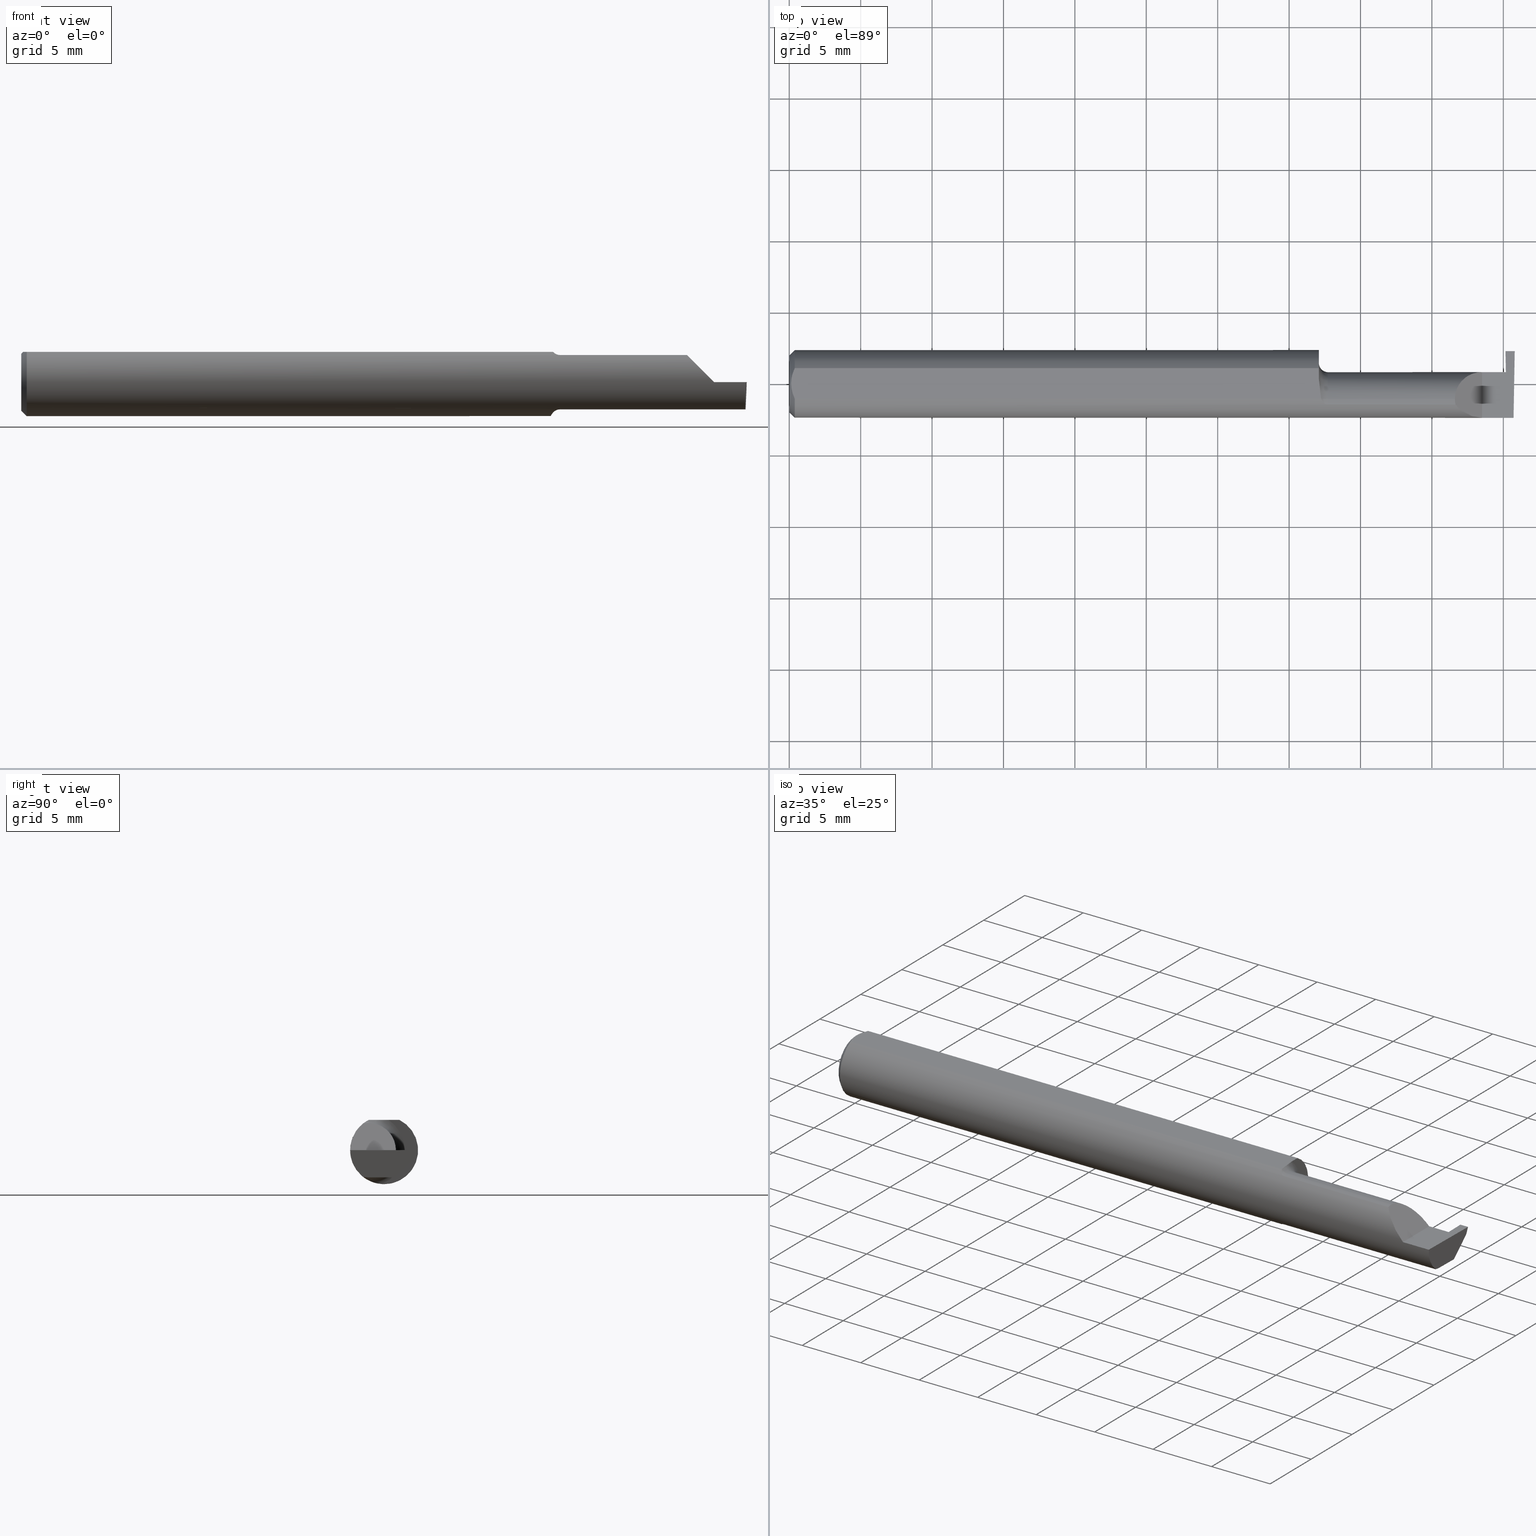
[diagram: canonical four-view strip — front | top / right | iso, engineering-drawing reading convention]
A machine part, canonical four-view strip (front | top / right | iso — engineering-drawing reading convention). The complete STEP part file that produces these views, byte-faithful:
ISO-10303-21;
HEADER;
FILE_DESCRIPTION (( 'STEP AP203' ),
    '1' );
FILE_NAME ('220662-GT025K-8.STEP',
    '2024-07-08T22:55:00',
    ( '' ),
    ( '' ),
    'SwSTEP 2.0',
    'SolidWorks 2024',
    '' );
FILE_SCHEMA (( 'CONFIG_CONTROL_DESIGN' ));
ENDSEC;

DATA;
#1 = DIRECTION ( 'NONE',  ( 0.04124162102275091835, 0.0006089328293546881869, -0.9991490168619618917 ) ) ;
#2 = ADVANCED_FACE ( 'NONE', ( #608 ), #625, .F. ) ;
#3 = CARTESIAN_POINT ( 'NONE',  ( 1.866066017177982594, 0.03239999999999998437, 0.04393398282201787380 ) ) ;
#4 = EDGE_CURVE ( 'NONE', #412, #445, #687, .T. ) ;
#5 = PRODUCT ( '220662-GT025K-8', '220662-GT025K-8', '', ( #654 ) ) ;
#6 = VECTOR ( 'NONE', #718, 39.37007874015748143 ) ;
#7 = ADVANCED_FACE ( 'NONE', ( #614 ), #308, .F. ) ;
#8 = DIRECTION ( 'NONE',  ( -0.03699114979479412729, 0.7066228325057373194, 0.7066228325057346549 ) ) ;
#9 = AXIS2_PLACEMENT_3D ( 'NONE', #634, #774, #584 ) ;
#10 = CARTESIAN_POINT ( 'NONE',  ( 1.459999999999999742, 0.01227294415283364248, 0.08359999999999999376 ) ) ;
#11 = ORIENTED_EDGE ( 'NONE', *, *, #529, .T. ) ;
#12 = EDGE_CURVE ( 'NONE', #264, #393, #15, .T. ) ;
#13 = CARTESIAN_POINT ( 'NONE',  ( 1.476446782524424073, -0.05558685324519236498, -0.07531605361338915283 ) ) ;
#14 = ORIENTED_EDGE ( 'NONE', *, *, #560, .T. ) ;
#15 = LINE ( 'NONE', #75, #341 ) ;
#16 = CARTESIAN_POINT ( 'NONE',  ( 1.994172072281005237, -0.09355431490906530867, -0.09996576130738771271 ) ) ;
#17 = VERTEX_POINT ( 'NONE', #257 ) ;
#18 = CARTESIAN_POINT ( 'NONE',  ( 1.880893035518783396, -0.09359999999999998876, 0.02910696448121669402 ) ) ;
#19 = CARTESIAN_POINT ( 'NONE',  ( 1.978214534726833840, -0.007134900077140363985, -0.07499999999999999722 ) ) ;
#20 = AXIS2_PLACEMENT_3D ( 'NONE', #329, #694, #91 ) ;
#21 = EDGE_LOOP ( 'NONE', ( #198, #372, #755, #223 ) ) ;
#22 = LINE ( 'NONE', #763, #33 ) ;
#23 = CARTESIAN_POINT ( 'NONE',  ( 1.978216550241089333, 0.05600033826564643213, -0.07500000000000002498 ) ) ;
#24 = EDGE_LOOP ( 'NONE', ( #190, #59, #719 ) ) ;
#25 = ADVANCED_FACE ( 'NONE', ( #200 ), #439, .T. ) ;
#26 = CARTESIAN_POINT ( 'NONE',  ( 1.996788249052547259, -0.09359999022555408332, -4.277588313355801215E-05 ) ) ;
#27 = DIRECTION ( 'NONE',  ( 0.000000000000000000, 0.000000000000000000, -1.000000000000000000 ) ) ;
#28 = ORIENTED_EDGE ( 'NONE', *, *, #427, .T. ) ;
#29 = LINE ( 'NONE', #508, #540 ) ;
#30 = CARTESIAN_POINT ( 'NONE',  ( 0.004999999999999986226, 1.025183015402604432E-17, 0.08359999999999999376 ) ) ;
#31 = EDGE_CURVE ( 'NONE', #498, #393, #320, .T. ) ;
#32 = ORIENTED_EDGE ( 'NONE', *, *, #666, .T. ) ;
#33 = VECTOR ( 'NONE', #571, 39.37007874015748143 ) ;
#34 = APPROVAL_PERSON_ORGANIZATION ( #727, #472, #776 ) ;
#35 = DIRECTION ( 'NONE',  ( -1.000000000000000000, -0.000000000000000000, -0.000000000000000000 ) ) ;
#36 = CARTESIAN_POINT ( 'NONE',  ( 1.459999999999999742, 0.000000000000000000, 0.000000000000000000 ) ) ;
#37 = DIRECTION ( 'NONE',  ( -1.000000000000000000, -0.000000000000000000, -0.000000000000000000 ) ) ;
#38 = DIRECTION ( 'NONE',  ( 0.000000000000000000, 0.000000000000000000, 1.000000000000000000 ) ) ;
#39 = ORIENTED_EDGE ( 'NONE', *, *, #58, .T. ) ;
#40 = LENGTH_MEASURE_WITH_UNIT ( LENGTH_MEASURE( 0.02539999999999999897 ), #219 );
#41 = DIRECTION ( 'NONE',  ( -1.000000000000000000, -0.000000000000000000, -0.000000000000000000 ) ) ;
#42 = EDGE_CURVE ( 'NONE', #131, #586, #420, .T. ) ;
#43 = VECTOR ( 'NONE', #633, 39.37007874015748143 ) ;
#44 = FACE_OUTER_BOUND ( 'NONE', #356, .T. ) ;
#45 = SECURITY_CLASSIFICATION ( '', '', #292 ) ;
#46 = CARTESIAN_POINT ( 'NONE',  ( 1.466129652885479251, -0.04209513035970094408, 0.08359999999999999376 ) ) ;
#47 = CALENDAR_DATE ( 2024, 8, 7 ) ;
#48 = DIRECTION ( 'NONE',  ( 0.000000000000000000, 0.000000000000000000, 1.000000000000000000 ) ) ;
#49 = EDGE_LOOP ( 'NONE', ( #403, #678, #11, #39, #145, #701, #641, #569, #92, #541, #409, #363, #353, #490, #369 ) ) ;
#50 = CARTESIAN_POINT ( 'NONE',  ( 1.978213402547462918, -0.04260000000000001286, -0.07499999999999998335 ) ) ;
#51 = VERTEX_POINT ( 'NONE', #735 ) ;
#52 = DIRECTION ( 'NONE',  ( 1.000000000000000000, 0.000000000000000000, 0.000000000000000000 ) ) ;
#53 = ORIENTED_EDGE ( 'NONE', *, *, #166, .T. ) ;
#54 = PERSON_AND_ORGANIZATION_ROLE ( 'design_supplier' ) ;
#55 = VECTOR ( 'NONE', #463, 39.37007874015748143 ) ;
#56 = ORGANIZATION ( 'UNSPECIFIED', 'UNSPECIFIED', '' ) ;
#57 = LINE ( 'NONE', #651, #215 ) ;
#58 = EDGE_CURVE ( 'NONE', #77, #149, #388, .T. ) ;
#59 = ORIENTED_EDGE ( 'NONE', *, *, #446, .T. ) ;
#60 = LINE ( 'NONE', #183, #6 ) ;
#61 = ORIENTED_EDGE ( 'NONE', *, *, #593, .T. ) ;
#62 = APPROVAL_DATE_TIME ( #366, #749 ) ;
#63 = FACE_OUTER_BOUND ( 'NONE', #294, .T. ) ;
#64 = VERTEX_POINT ( 'NONE', #205 ) ;
#65 = APPROVAL_ROLE ( '' ) ;
#66 = ADVANCED_FACE ( 'NONE', ( #63 ), #129, .F. ) ;
#67 = CARTESIAN_POINT ( 'NONE',  ( 1.975510542377208578, 0.03240000000000000518, 1.857359675493197298E-17 ) ) ;
#68 = CARTESIAN_POINT ( 'NONE',  ( 1.464570820222979908, -0.02392027542784326555, 0.08360000000000000764 ) ) ;
#69 = ORIENTED_EDGE ( 'NONE', *, *, #12, .T. ) ;
#70 = VECTOR ( 'NONE', #740, 39.37007874015748143 ) ;
#71 = DIRECTION ( 'NONE',  ( 0.000000000000000000, 0.000000000000000000, 1.000000000000000000 ) ) ;
#72 = AXIS2_PLACEMENT_3D ( 'NONE', #474, #52, #535 ) ;
#73 = ORIENTED_EDGE ( 'NONE', *, *, #196, .T. ) ;
#74 = CARTESIAN_POINT ( 'NONE',  ( 1.474728336617688651, -0.05428341532129050961, -0.07627162539867091140 ) ) ;
#75 = CARTESIAN_POINT ( 'NONE',  ( 1.978215639910378298, 0.03244570701694828724, -0.07499697642507778539 ) ) ;
#76 = CARTESIAN_POINT ( 'NONE',  ( 1.482653034764491728, -0.05810704225352129881, -0.07337936794867812307 ) ) ;
#77 = VERTEX_POINT ( 'NONE', #742 ) ;
#78 = CARTESIAN_POINT ( 'NONE',  ( 1.459999999999999964, -0.04259999999999998510, 0.07499999999999998335 ) ) ;
#79 = CARTESIAN_POINT ( 'NONE',  ( 0.000000000000000000, 0.000000000000000000, 0.000000000000000000 ) ) ;
#80 = VECTOR ( 'NONE', #565, 39.37007874015748854 ) ;
#81 = ADVANCED_FACE ( 'NONE', ( #488 ), #499, .T. ) ;
#82 = AXIS2_PLACEMENT_3D ( 'NONE', #775, #414, #105 ) ;
#83 = VERTEX_POINT ( 'NONE', #67 ) ;
#84 = FACE_OUTER_BOUND ( 'NONE', #726, .T. ) ;
#85 = CARTESIAN_POINT ( 'NONE',  ( 1.459999999999999742, -0.006757276995305157297, -0.09335576686851604356 ) ) ;
#86 = EDGE_CURVE ( 'NONE', #149, #131, #254, .T. ) ;
#87 = EDGE_CURVE ( 'NONE', #465, #319, #502, .T. ) ;
#88 = DIRECTION ( 'NONE',  ( -1.000000000000000000, -0.000000000000000000, -0.000000000000000000 ) ) ;
#89 = EDGE_CURVE ( 'NONE', #185, #227, #642, .T. ) ;
#90 = DIRECTION ( 'NONE',  ( 0.01742050049977392906, -0.9998482515673753346, -2.130797594924498551E-18 ) ) ;
#91 = DIRECTION ( 'NONE',  ( 0.000000000000000000, 0.000000000000000000, 1.000000000000000000 ) ) ;
#92 = ORIENTED_EDGE ( 'NONE', *, *, #511, .F. ) ;
#93 = CARTESIAN_POINT ( 'NONE',  ( 1.484999999999999876, -0.04259999999999997816, 0.000000000000000000 ) ) ;
#94 = CARTESIAN_POINT ( 'NONE',  ( 1.484999999999999876, -0.05810704225352111146, -0.07337936794867824797 ) ) ;
#95 = CARTESIAN_POINT ( 'NONE',  ( 1.484999999999999876, -0.04259999999999997816, 0.000000000000000000 ) ) ;
#96 = ORIENTED_EDGE ( 'NONE', *, *, #367, .F. ) ;
#97 = VECTOR ( 'NONE', #1, 39.37007874015748143 ) ;
#98 = VECTOR ( 'NONE', #394, 39.37007874015748143 ) ;
#99 = CARTESIAN_POINT ( 'NONE',  ( 0.01499999999999999944, 0.000000000000000000, 0.000000000000000000 ) ) ;
#100 = ORIENTED_EDGE ( 'NONE', *, *, #234, .T. ) ;
#101 = CARTESIAN_POINT ( 'NONE',  ( 1.974499999999999922, 0.09040000000000000813, -3.918869757271545852E-19 ) ) ;
#102 = LINE ( 'NONE', #347, #323 ) ;
#103 = ORIENTED_EDGE ( 'NONE', *, *, #175, .T. ) ;
#104 = DIRECTION ( 'NONE',  ( -1.000000000000000000, -0.000000000000000000, -0.000000000000000000 ) ) ;
#105 = DIRECTION ( 'NONE',  ( 0.000000000000000000, 0.000000000000000000, -1.000000000000000000 ) ) ;
#106 = EDGE_LOOP ( 'NONE', ( #303, #103, #168, #28 ) ) ;
#107 = CONICAL_SURFACE ( 'NONE', #617, 0.09359999999999998876, 0.7853981633974473908 ) ;
#108 = APPROVAL_DATE_TIME ( #122, #472 ) ;
#109 = APPLICATION_CONTEXT ( 'configuration controlled 3d designs of mechanical parts and assemblies' ) ;
#110 = CC_DESIGN_APPROVAL ( #663, ( #454 ) ) ;
#111 = CARTESIAN_POINT ( 'NONE',  ( 1.996789369178486373, -0.09359999999634724399, 1.965990811775635199E-19 ) ) ;
#112 = ADVANCED_FACE ( 'NONE', ( #343 ), #437, .T. ) ;
#113 = ORIENTED_EDGE ( 'NONE', *, *, #310, .T. ) ;
#114 = EDGE_CURVE ( 'NONE', #359, #471, #332, .T. ) ;
#115 = APPROVAL_STATUS ( 'not_yet_approved' ) ;
#116 = CARTESIAN_POINT ( 'NONE',  ( 1.484999999999999876, -0.04259999999999998510, 0.000000000000000000 ) ) ;
#117 = VERTEX_POINT ( 'NONE', #567 ) ;
#118 = PERSON_AND_ORGANIZATION_ROLE ( 'design_owner' ) ;
#119 = CARTESIAN_POINT ( 'NONE',  ( 0.01203648650249644972, 0.03550565407121128447, 0.08359999999999997988 ) ) ;
#120 = CARTESIAN_POINT ( 'NONE',  ( 0.004999999999999977553, -0.007328888879231072045, 0.08359999999999997988 ) ) ;
#121 = EDGE_LOOP ( 'NONE', ( #547, #377, #14, #778 ) ) ;
#122 = DATE_AND_TIME ( #783, #478 ) ;
#123 = VECTOR ( 'NONE', #155, 39.37007874015748143 ) ;
#124 = CIRCLE ( 'NONE', #745, 0.07499999999999998335 ) ;
#125 =( BOUNDED_CURVE ( )  B_SPLINE_CURVE ( 3, ( #346, #276, #707, #165 ),
 .UNSPECIFIED., .F., .T. ) 
 B_SPLINE_CURVE_WITH_KNOTS ( ( 4, 4 ),
 ( 4.455205321888865200, 4.711308219781928486 ),
 .UNSPECIFIED. ) 
 CURVE ( )  GEOMETRIC_REPRESENTATION_ITEM ( )  RATIONAL_B_SPLINE_CURVE ( ( 1.000000000000000000, 0.9945417399294781413, 0.9945417399294781413, 1.000000000000000000 ) ) 
 REPRESENTATION_ITEM ( '' )  );
#126 = DATE_AND_TIME ( #47, #162 ) ;
#127 = PRODUCT_DEFINITION_SHAPE ( 'NONE', 'NONE',  #501 ) ;
#128 = ADVANCED_FACE ( 'NONE', ( #84 ), #447, .F. ) ;
#129 = PLANE ( 'NONE',  #480 ) ;
#130 = CARTESIAN_POINT ( 'NONE',  ( 1.975284083932824064, 0.02994487577554267102, -0.01903262984222200624 ) ) ;
#131 = VERTEX_POINT ( 'NONE', #688 ) ;
#132 = DIRECTION ( 'NONE',  ( -1.000000000000000000, -0.000000000000000000, -0.000000000000000000 ) ) ;
#133 = ORIENTED_EDGE ( 'NONE', *, *, #728, .F. ) ;
#134 =( GEOMETRIC_REPRESENTATION_CONTEXT ( 3 ) GLOBAL_UNCERTAINTY_ASSIGNED_CONTEXT ( ( #255 ) ) GLOBAL_UNIT_ASSIGNED_CONTEXT ( ( #331, #570, #462 ) ) REPRESENTATION_CONTEXT ( 'NONE', 'WORKASPACE' ) );
#135 = CARTESIAN_POINT ( 'NONE',  ( 1.995715029210241243, -0.04259999999999997816, -0.07499999999999998335 ) ) ;
#136 = CARTESIAN_POINT ( 'NONE',  ( 1.468086474849918499, -0.04638796853538176834, -0.08140770120152256151 ) ) ;
#137 = ORIENTED_EDGE ( 'NONE', *, *, #492, .T. ) ;
#138 = CC_DESIGN_PERSON_AND_ORGANIZATION_ASSIGNMENT ( #426, #724, ( #501 ) ) ;
#139 = DIRECTION ( 'NONE',  ( 0.000000000000000000, 0.000000000000000000, -1.000000000000000000 ) ) ;
#140 = DIRECTION ( 'NONE',  ( -0.03084274406794415904, -0.7067703747110382073, -0.7067703747110356538 ) ) ;
#141 = ORIENTED_EDGE ( 'NONE', *, *, #150, .T. ) ;
#142 = ADVANCED_FACE ( 'NONE', ( #515 ), #146, .T. ) ;
#143 = DIRECTION ( 'NONE',  ( 0.9992391710281357531, 0.01740988840156643819, 0.03489949668475363781 ) ) ;
#144 = CARTESIAN_POINT ( 'NONE',  ( 1.466129652885479251, -0.04209513035970094408, 0.08359999999999999376 ) ) ;
#145 = ORIENTED_EDGE ( 'NONE', *, *, #427, .F. ) ;
#146 = PLANE ( 'NONE',  #411 ) ;
#147 = DIRECTION ( 'NONE',  ( -0.000000000000000000, 1.000000000000000000, -0.000000000000000000 ) ) ;
#148 = CIRCLE ( 'NONE', #187, 0.07860000000000001708 ) ;
#149 = VERTEX_POINT ( 'NONE', #265 ) ;
#150 = EDGE_CURVE ( 'NONE', #445, #247, #468, .T. ) ;
#151 = APPLICATION_CONTEXT ( 'configuration controlled 3d designs of mechanical parts and assemblies' ) ;
#152 = FACE_OUTER_BOUND ( 'NONE', #121, .T. ) ;
#153 = CARTESIAN_POINT ( 'NONE',  ( 2.999519565323743132E-32, -0.09359999999999998876, 2.449293598294717754E-16 ) ) ;
#154 = EDGE_LOOP ( 'NONE', ( #558, #73, #630, #327, #709, #517, #664 ) ) ;
#155 = DIRECTION ( 'NONE',  ( 1.000000000000000000, 0.000000000000000000, 0.000000000000000000 ) ) ;
#156 = CARTESIAN_POINT ( 'NONE',  ( 0.01499999999999999944, 0.000000000000000000, -0.09359999999999998876 ) ) ;
#157 = ORIENTED_EDGE ( 'NONE', *, *, #537, .F. ) ;
#158 = CARTESIAN_POINT ( 'NONE',  ( 1.459999999999999964, -0.04259999999999997816, -0.07499999999999998335 ) ) ;
#159 = DIRECTION ( 'NONE',  ( 1.000000000000000000, 0.000000000000000000, 0.000000000000000000 ) ) ;
#160 = EDGE_LOOP ( 'NONE', ( #173, #178, #157, #685, #457, #259, #725 ) ) ;
#161 = VECTOR ( 'NONE', #159, 39.37007874015748143 ) ;
#162 = LOCAL_TIME ( 15, 55, 0.000000000000000000, #301 ) ;
#163 = CARTESIAN_POINT ( 'NONE',  ( 1.466129652885479251, -0.04209513035970094408, 0.08359999999999999376 ) ) ;
#164 = ORIENTED_EDGE ( 'NONE', *, *, #698, .F. ) ;
#165 = CARTESIAN_POINT ( 'NONE',  ( 1.974499999999999922, 0.03239999167003507208, -3.534818988851040720E-05 ) ) ;
#166 = EDGE_CURVE ( 'NONE', #723, #359, #148, .T. ) ;
#167 = CARTESIAN_POINT ( 'NONE',  ( 1.463953896433696000, -0.03733827064844358334, -0.08603332211978831356 ) ) ;
#168 = ORIENTED_EDGE ( 'NONE', *, *, #593, .F. ) ;
#169 = APPROVAL_STATUS ( 'not_yet_approved' ) ;
#170 = ADVANCED_FACE ( 'NONE', ( #152 ), #328, .F. ) ;
#171 = CARTESIAN_POINT ( 'NONE',  ( 0.009492654797564227878, 0.02859466010166631170, 0.08360000000000000764 ) ) ;
#172 = AXIS2_PLACEMENT_3D ( 'NONE', #99, #459, #208 ) ;
#173 = ORIENTED_EDGE ( 'NONE', *, *, #446, .F. ) ;
#174 = AXIS2_PLACEMENT_3D ( 'NONE', #280, #638, #521 ) ;
#175 = EDGE_CURVE ( 'NONE', #131, #649, #628, .T. ) ;
#176 = CALENDAR_DATE ( 2024, 8, 7 ) ;
#177 = CARTESIAN_POINT ( 'NONE',  ( 1.484999999999999876, -0.05810704225352113922, 0.07337936794867823409 ) ) ;
#178 = ORIENTED_EDGE ( 'NONE', *, *, #673, .T. ) ;
#179 = LINE ( 'NONE', #604, #97 ) ;
#180 = ORIENTED_EDGE ( 'NONE', *, *, #594, .T. ) ;
#181 = APPROVAL_STATUS ( 'not_yet_approved' ) ;
#182 = CARTESIAN_POINT ( 'NONE',  ( 1.729749999999999677, -0.05810704225352113922, -0.07337936794867823409 ) ) ;
#183 = CARTESIAN_POINT ( 'NONE',  ( 0.01499999999999999944, 1.146269404001922621E-17, 0.09359999999999998876 ) ) ;
#184 = DIRECTION ( 'NONE',  ( 1.000000000000000000, 0.000000000000000000, 0.000000000000000000 ) ) ;
#185 = VERTEX_POINT ( 'NONE', #455 ) ;
#186 = CALENDAR_DATE ( 2024, 8, 7 ) ;
#187 = AXIS2_PLACEMENT_3D ( 'NONE', #212, #338, #575 ) ;
#188 = DIRECTION ( 'NONE',  ( -1.000000000000000000, -0.000000000000000000, -0.000000000000000000 ) ) ;
#189 = PLANE ( 'NONE',  #563 ) ;
#190 = ORIENTED_EDGE ( 'NONE', *, *, #392, .T. ) ;
#191 = CARTESIAN_POINT ( 'NONE',  ( 0.01499999999999999598, 0.04209513035969836975, 0.08359999999999999376 ) ) ;
#192 = DESIGN_CONTEXT ( 'detailed design', #151, 'design' ) ;
#193 = VERTEX_POINT ( 'NONE', #26 ) ;
#194 = CARTESIAN_POINT ( 'NONE',  ( 1.835542168554754605, -0.05300374992736077429, 0.07445783144524567576 ) ) ;
#195 = LINE ( 'NONE', #494, #70 ) ;
#196 = EDGE_CURVE ( 'NONE', #613, #64, #759, .T. ) ;
#197 = B_SPLINE_CURVE_WITH_KNOTS ( 'NONE', 3,
 ( #486, #120, #298, #781, #712, #596 ),
 .UNSPECIFIED., .F., .F.,
 ( 4, 2, 4 ),
 ( 0.002614097267282503544, 0.003163218599391118963, 0.003712339931499734381 ),
 .UNSPECIFIED. ) ;
#198 = ORIENTED_EDGE ( 'NONE', *, *, #431, .T. ) ;
#199 = AXIS2_PLACEMENT_3D ( 'NONE', #285, #636, #696 ) ;
#200 = FACE_OUTER_BOUND ( 'NONE', #316, .T. ) ;
#201 = DIRECTION ( 'NONE',  ( 7.209054895695219933E-16, -0.9999998142845093474, -0.0006094513490878466317 ) ) ;
#202 = AXIS2_PLACEMENT_3D ( 'NONE', #317, #143, #375 ) ;
#203 = ORIENTED_EDGE ( 'NONE', *, *, #335, .F. ) ;
#204 = EDGE_CURVE ( 'NONE', #741, #83, #564, .T. ) ;
#205 = CARTESIAN_POINT ( 'NONE',  ( 2.000000000000000444, 0.09040000000000000813, 6.269377719834979509E-17 ) ) ;
#206 = DIRECTION ( 'NONE',  ( 1.000000000000000000, 0.000000000000000000, 0.000000000000000000 ) ) ;
#207 = B_SPLINE_CURVE_WITH_KNOTS ( 'NONE', 3,
 ( #482, #119, #171, #543, #302, #410 ),
 .UNSPECIFIED., .F., .F.,
 ( 4, 2, 4 ),
 ( 0.001518921481343302573, 0.002066509374312902950, 0.002614097267282503544 ),
 .UNSPECIFIED. ) ;
#208 = DIRECTION ( 'NONE',  ( 0.000000000000000000, 0.000000000000000000, -1.000000000000000000 ) ) ;
#209 = FACE_OUTER_BOUND ( 'NONE', #160, .T. ) ;
#210 = EDGE_CURVE ( 'NONE', #586, #465, #22, .T. ) ;
#211 = EDGE_CURVE ( 'NONE', #117, #445, #29, .T. ) ;
#212 = CARTESIAN_POINT ( 'NONE',  ( 0.000000000000000000, 0.000000000000000000, 0.000000000000000000 ) ) ;
#213 = DIRECTION ( 'NONE',  ( -0.03056411404777943305, -0.3418603543644915810, -0.9392536042231929283 ) ) ;
#214 = CIRCLE ( 'NONE', #714, 0.09359999999999998876 ) ;
#215 = VECTOR ( 'NONE', #451, 39.37007874015748854 ) ;
#216 = CARTESIAN_POINT ( 'NONE',  ( 1.899999999999999911, 0.08348456554894213844, -0.01900000000000000300 ) ) ;
#217 = CARTESIAN_POINT ( 'NONE',  ( 1.999381723781206155, 0.08348456554894213844, -0.01899999999999999953 ) ) ;
#218 = DIRECTION ( 'NONE',  ( -7.219510806010324627E-16, 0.9999998142845092364, 0.0006094513490878469570 ) ) ;
#219 =( LENGTH_UNIT ( ) NAMED_UNIT ( * ) SI_UNIT ( $, .METRE. ) );
#220 = DIMENSIONAL_EXPONENTS ( 1.000000000000000000, 0.000000000000000000, 0.000000000000000000, 0.000000000000000000, 0.000000000000000000, 0.000000000000000000, 0.000000000000000000 ) ;
#221 = DIRECTION ( 'NONE',  ( 1.000000000000000000, -0.000000000000000000, -0.000000000000000000 ) ) ;
#222 = LINE ( 'NONE', #767, #161 ) ;
#223 = ORIENTED_EDGE ( 'NONE', *, *, #686, .T. ) ;
#224 = CC_DESIGN_PERSON_AND_ORGANIZATION_ASSIGNMENT ( #307, #662, ( #45 ) ) ;
#225 = CARTESIAN_POINT ( 'NONE',  ( 0.000000000000000000, 0.000000000000000000, 0.000000000000000000 ) ) ;
#226 = FACE_OUTER_BOUND ( 'NONE', #106, .T. ) ;
#227 = VERTEX_POINT ( 'NONE', #217 ) ;
#228 = AXIS2_PLACEMENT_3D ( 'NONE', #278, #519, #344 ) ;
#229 = ADVANCED_BREP_SHAPE_REPRESENTATION ( '220662-GT025K-8', ( #245, #731 ), #134 ) ;
#230 = EDGE_CURVE ( 'NONE', #51, #551, #396, .T. ) ;
#231 = DIRECTION ( 'NONE',  ( -1.000000000000000000, -7.209802597311143795E-16, 1.224646799147358877E-16 ) ) ;
#232 = CARTESIAN_POINT ( 'NONE',  ( 1.474746577633804234, -0.05429945193459817521, 0.07626038032150797563 ) ) ;
#233 = VERTEX_POINT ( 'NONE', #94 ) ;
#234 = EDGE_CURVE ( 'NONE', #433, #51, #197, .T. ) ;
#235 = CARTESIAN_POINT ( 'NONE',  ( 1.466356684838558522, -0.04259999999999997816, 0.08334386600104415344 ) ) ;
#236 = ORIENTED_EDGE ( 'NONE', *, *, #283, .T. ) ;
#237 = PERSON_AND_ORGANIZATION ( #348, #56 ) ;
#238 = CARTESIAN_POINT ( 'NONE',  ( 1.466204482410374155, -0.04226411763296330365, 0.08351490979309549034 ) ) ;
#239 = AXIS2_PLACEMENT_3D ( 'NONE', #315, #132, #435 ) ;
#240 = AXIS2_PLACEMENT_3D ( 'NONE', #650, #88, #336 ) ;
#241 = CARTESIAN_POINT ( 'NONE',  ( 1.466280153739604630, -0.04243240890922537339, 0.08342952773968856373 ) ) ;
#242 = EDGE_LOOP ( 'NONE', ( #752, #53 ) ) ;
#243 = COORDINATED_UNIVERSAL_TIME_OFFSET ( 8, 0, .BEHIND. ) ;
#244 = LINE ( 'NONE', #23, #80 ) ;
#245 = MANIFOLD_SOLID_BREP ( 'Front Angle', #576 ) ;
#246 = DIRECTION ( 'NONE',  ( 1.000000000000000000, 0.000000000000000000, 0.000000000000000000 ) ) ;
#247 = VERTEX_POINT ( 'NONE', #50 ) ;
#248 = AXIS2_PLACEMENT_3D ( 'NONE', #739, #35, #390 ) ;
#249 = CARTESIAN_POINT ( 'NONE',  ( 1.836620632051322310, -0.05810704225352133351, 0.07337936794867813695 ) ) ;
#250 = DIRECTION ( 'NONE',  ( 0.000000000000000000, 0.0006094513490878465233, -0.9999998142845092364 ) ) ;
#251 = ORIENTED_EDGE ( 'NONE', *, *, #728, .T. ) ;
#252 = CARTESIAN_POINT ( 'NONE',  ( 1.975181069320713245, 0.08545240048792476784, -0.01703216506101738748 ) ) ;
#253 = CARTESIAN_POINT ( 'NONE',  ( 1.484999999999999876, -0.04259999999999997816, 0.000000000000000000 ) ) ;
#254 =( BOUNDED_CURVE ( )  B_SPLINE_CURVE ( 3, ( #249, #194, #512, #766 ),
 .UNSPECIFIED., .F., .F. ) 
 B_SPLINE_CURVE_WITH_KNOTS ( ( 4, 4 ),
 ( 6.074922494366326475, 6.283185307179586232 ),
 .UNSPECIFIED. ) 
 CURVE ( )  GEOMETRIC_REPRESENTATION_ITEM ( )  RATIONAL_B_SPLINE_CURVE ( ( 1.000000000000000000, 0.9963888149483994816, 0.9963888149483994816, 1.000000000000000000 ) ) 
 REPRESENTATION_ITEM ( '' )  );
#255 = UNCERTAINTY_MEASURE_WITH_UNIT (LENGTH_MEASURE( 1.000000000000000082E-05 ), #331, 'distance_accuracy_value', 'NONE');
#256 = ORIENTED_EDGE ( 'NONE', *, *, #533, .T. ) ;
#257 = CARTESIAN_POINT ( 'NONE',  ( 1.484999999999999876, -0.04259999999999997122, -0.07499999999999998335 ) ) ;
#258 = DIRECTION ( 'NONE',  ( 0.02617296143184117893, -0.0004568507411563393905, 0.9996573249755575929 ) ) ;
#259 = ORIENTED_EDGE ( 'NONE', *, *, #592, .T. ) ;
#260 = CIRCLE ( 'NONE', #362, 0.09359999999999998876 ) ;
#261 = VECTOR ( 'NONE', #231, 39.37007874015748143 ) ;
#262 = ORIENTED_EDGE ( 'NONE', *, *, #87, .F. ) ;
#263 = CARTESIAN_POINT ( 'NONE',  ( 1.995486889784650053, -0.05810704225352113922, -0.07337936794867823409 ) ) ;
#264 = VERTEX_POINT ( 'NONE', #415 ) ;
#265 = CARTESIAN_POINT ( 'NONE',  ( 1.836620632051322310, -0.05810704225352133351, 0.07337936794867813695 ) ) ;
#266 = FACE_OUTER_BOUND ( 'NONE', #669, .T. ) ;
#267 = ORIENTED_EDGE ( 'NONE', *, *, #150, .F. ) ;
#268 = CARTESIAN_POINT ( 'NONE',  ( 1.997382703856816155, 0.09044568507411562819, -0.09996573249755577595 ) ) ;
#269 = LINE ( 'NONE', #754, #631 ) ;
#270 = PLANE ( 'NONE',  #715 ) ;
#271 = AXIS2_PLACEMENT_3D ( 'NONE', #513, #700, #339 ) ;
#272 = DIRECTION ( 'NONE',  ( 1.000000000000000000, 0.000000000000000000, -0.000000000000000000 ) ) ;
#273 = CARTESIAN_POINT ( 'NONE',  ( 1.466356684838558522, -0.04259999999999997816, 0.08334386600104415344 ) ) ;
#274 = VECTOR ( 'NONE', #658, 39.37007874015748143 ) ;
#275 = ORIENTED_EDGE ( 'NONE', *, *, #698, .T. ) ;
#276 = CARTESIAN_POINT ( 'NONE',  ( 1.975027797685394937, 0.03157410243558825269, -0.01282266061342999565 ) ) ;
#277 = DIRECTION ( 'NONE',  ( 0.000000000000000000, -0.000000000000000000, 1.000000000000000000 ) ) ;
#278 = CARTESIAN_POINT ( 'NONE',  ( 1.459999999999999742, -0.04259999999999998510, 0.000000000000000000 ) ) ;
#279 = APPLICATION_PROTOCOL_DEFINITION ( 'international standard', 'config_control_design', 1994, #109 ) ;
#280 = CARTESIAN_POINT ( 'NONE',  ( 1.910000000000000142, -0.1000000000000000056, 1.102182119232621301E-17 ) ) ;
#281 = LINE ( 'NONE', #153, #550 ) ;
#282 = VERTEX_POINT ( 'NONE', #536 ) ;
#283 = EDGE_CURVE ( 'NONE', #723, #433, #60, .T. ) ;
#284 = LINE ( 'NONE', #466, #261 ) ;
#285 = CARTESIAN_POINT ( 'NONE',  ( 1.484999999999999876, -0.04259999999999998510, 0.000000000000000000 ) ) ;
#286 = VECTOR ( 'NONE', #751, 39.37007874015748143 ) ;
#287 = EDGE_CURVE ( 'NONE', #319, #264, #179, .T. ) ;
#288 = CARTESIAN_POINT ( 'NONE',  ( 1.484999999999999876, -0.04259999999999998510, 0.000000000000000000 ) ) ;
#289 = EDGE_CURVE ( 'NONE', #247, #498, #244, .T. ) ;
#290 = LINE ( 'NONE', #595, #438 ) ;
#291 = ORIENTED_EDGE ( 'NONE', *, *, #702, .F. ) ;
#292 = SECURITY_CLASSIFICATION_LEVEL ( 'unclassified' ) ;
#293 = LINE ( 'NONE', #660, #274 ) ;
#294 = EDGE_LOOP ( 'NONE', ( #578, #137, #69, #682, #484 ) ) ;
#295 = VERTEX_POINT ( 'NONE', #191 ) ;
#296 = DATE_TIME_ROLE ( 'creation_date' ) ;
#297 = CARTESIAN_POINT ( 'NONE',  ( 1.460436655799339123, -0.01945041057485635827, -0.09177104786119411051 ) ) ;
#298 = CARTESIAN_POINT ( 'NONE',  ( 0.005975039161239314132, -0.01453776427033151748, 0.08360000000000000764 ) ) ;
#299 = VECTOR ( 'NONE', #705, 39.37007874015748143 ) ;
#300 = APPROVAL_PERSON_ORGANIZATION ( #606, #749, #65 ) ;
#301 = COORDINATED_UNIVERSAL_TIME_OFFSET ( 8, 0, .BEHIND. ) ;
#302 = CARTESIAN_POINT ( 'NONE',  ( 0.004999999999999975818, 0.007308422719211830898, 0.08359999999999999376 ) ) ;
#303 = ORIENTED_EDGE ( 'NONE', *, *, #86, .T. ) ;
#304 = CARTESIAN_POINT ( 'NONE',  ( 1.459999999999999964, -0.04259999999999998510, 0.000000000000000000 ) ) ;
#305 = ADVANCED_FACE ( 'NONE', ( #266 ), #432, .F. ) ;
#306 = ORIENTED_EDGE ( 'NONE', *, *, #537, .T. ) ;
#307 = PERSON_AND_ORGANIZATION ( #348, #56 ) ;
#308 = PLANE ( 'NONE',  #202 ) ;
#309 = CARTESIAN_POINT ( 'NONE',  ( 1.466356684838558522, -0.04259999999999997122, -0.08334386600104412568 ) ) ;
#310 = EDGE_CURVE ( 'NONE', #365, #282, #195, .T. ) ;
#311 = ORIENTED_EDGE ( 'NONE', *, *, #114, .F. ) ;
#312 = ADVANCED_FACE ( 'NONE', ( #668 ), #107, .T. ) ;
#313 = AXIS2_PLACEMENT_3D ( 'NONE', #79, #326, #572 ) ;
#314 = CC_DESIGN_APPROVAL ( #472, ( #45 ) ) ;
#315 = CARTESIAN_POINT ( 'NONE',  ( 0.000000000000000000, 0.000000000000000000, 0.000000000000000000 ) ) ;
#316 = EDGE_LOOP ( 'NONE', ( #203, #275, #772, #605, #599, #398, #737, #133 ) ) ;
#317 = CARTESIAN_POINT ( 'NONE',  ( 1.979734127201016936, 0.09049136203013631585, -0.1499086240528643699 ) ) ;
#318 = LINE ( 'NONE', #16, #337 ) ;
#319 = VERTEX_POINT ( 'NONE', #500 ) ;
#320 = LINE ( 'NONE', #252, #643 ) ;
#321 = CARTESIAN_POINT ( 'NONE',  ( 1.977956086143509484, 0.03244268712522559162, -0.07004187842361092597 ) ) ;
#322 = VERTEX_POINT ( 'NONE', #309 ) ;
#323 = VECTOR ( 'NONE', #147, 39.37007874015748143 ) ;
#324 = ADVANCED_FACE ( 'NONE', ( #559 ), #189, .F. ) ;
#325 = DIRECTION ( 'NONE',  ( 0.01744642479411314534, 0.9998477995484629233, -2.135106780035503491E-18 ) ) ;
#326 = DIRECTION ( 'NONE',  ( -1.000000000000000000, -0.000000000000000000, -0.000000000000000000 ) ) ;
#327 = ORIENTED_EDGE ( 'NONE', *, *, #204, .T. ) ;
#328 = PLANE ( 'NONE',  #174 ) ;
#329 = CARTESIAN_POINT ( 'NONE',  ( 1.484999999999999876, -0.04259999999999997122, -0.09999999999999999167 ) ) ;
#330 = ORIENTED_EDGE ( 'NONE', *, *, #351, .F. ) ;
#331 =( CONVERSION_BASED_UNIT ( 'INCH', #40 ) LENGTH_UNIT ( ) NAMED_UNIT ( #220 ) );
#332 = LINE ( 'NONE', #632, #299 ) ;
#333 = DIRECTION ( 'NONE',  ( -1.000000000000000000, -0.000000000000000000, -0.000000000000000000 ) ) ;
#334 = ORIENTED_EDGE ( 'NONE', *, *, #310, .F. ) ;
#335 = EDGE_CURVE ( 'NONE', #247, #748, #528, .T. ) ;
#336 = DIRECTION ( 'NONE',  ( 0.000000000000000000, 0.000000000000000000, 1.000000000000000000 ) ) ;
#337 = VECTOR ( 'NONE', #258, 39.37007874015748854 ) ;
#338 = DIRECTION ( 'NONE',  ( -1.000000000000000000, -0.000000000000000000, -0.000000000000000000 ) ) ;
#339 = DIRECTION ( 'NONE',  ( 0.000000000000000000, -0.3420201433256696566, -0.9396926207859079838 ) ) ;
#340 = ORIENTED_EDGE ( 'NONE', *, *, #533, .F. ) ;
#341 = VECTOR ( 'NONE', #493, 39.37007874015748854 ) ;
#342 = DIRECTION ( 'NONE',  ( 0.000000000000000000, -0.7071067811865462405, 0.7071067811865487940 ) ) ;
#343 = FACE_OUTER_BOUND ( 'NONE', #380, .T. ) ;
#344 = DIRECTION ( 'NONE',  ( 0.000000000000000000, 0.000000000000000000, 1.000000000000000000 ) ) ;
#345 = ORIENTED_EDGE ( 'NONE', *, *, #674, .T. ) ;
#346 = CARTESIAN_POINT ( 'NONE',  ( 1.975284083932824064, 0.02994487577554267102, -0.01903262984222200624 ) ) ;
#347 = CARTESIAN_POINT ( 'NONE',  ( 1.910000000000000142, -0.1000000000000000056, 1.102182119232621301E-17 ) ) ;
#348 = PERSON ( 'UNSPECIFIED', 'UNSPECIFIED', 'UNSPECIFIED', ('UNSPECIFIED'), ('UNSPECIFIED'), ('UNSPECIFIED') ) ;
#349 = DIRECTION ( 'NONE',  ( 0.000000000000000000, 0.000000000000000000, 1.000000000000000000 ) ) ;
#350 = PLANE ( 'NONE',  #72 ) ;
#351 = EDGE_CURVE ( 'NONE', #227, #117, #612, .T. ) ;
#352 = AXIS2_PLACEMENT_3D ( 'NONE', #288, #104, #349 ) ;
#353 = ORIENTED_EDGE ( 'NONE', *, *, #673, .F. ) ;
#354 = SHAPE_DEFINITION_REPRESENTATION ( #127, #229 ) ;
#355 = CARTESIAN_POINT ( 'NONE',  ( 1.470259025420519228, -0.04992838138009422083, 0.07925011723318650669 ) ) ;
#356 = EDGE_LOOP ( 'NONE', ( #251, #510, #423 ) ) ;
#357 = PERSON_AND_ORGANIZATION ( #348, #56 ) ;
#358 = CARTESIAN_POINT ( 'NONE',  ( 1.466356684838558522, -0.04259999999999997122, -0.08334386600104412568 ) ) ;
#359 = VERTEX_POINT ( 'NONE', #379 ) ;
#360 = CC_DESIGN_DATE_AND_TIME_ASSIGNMENT ( #418, #296, ( #501 ) ) ;
#361 = CARTESIAN_POINT ( 'NONE',  ( 1.468098441794898346, -0.04641417426599063478, 0.08139430652501544738 ) ) ;
#362 = AXIS2_PLACEMENT_3D ( 'NONE', #644, #405, #582 ) ;
#363 = ORIENTED_EDGE ( 'NONE', *, *, #534, .F. ) ;
#364 = EDGE_CURVE ( 'NONE', #551, #365, #562, .T. ) ;
#365 = VERTEX_POINT ( 'NONE', #10 ) ;
#366 = DATE_AND_TIME ( #186, #620 ) ;
#367 = EDGE_CURVE ( 'NONE', #359, #723, #677, .T. ) ;
#368 = DIRECTION ( 'NONE',  ( 0.000000000000000000, 0.000000000000000000, 1.000000000000000000 ) ) ;
#369 = ORIENTED_EDGE ( 'NONE', *, *, #674, .F. ) ;
#370 = ORIENTED_EDGE ( 'NONE', *, *, #534, .T. ) ;
#371 = CARTESIAN_POINT ( 'NONE',  ( 1.980744671832483705, 0.03249136206948449734, -0.1499086886162006582 ) ) ;
#372 = ORIENTED_EDGE ( 'NONE', *, *, #587, .T. ) ;
#373 = TOROIDAL_SURFACE ( 'NONE', #691, 0.09999999999999999167, 0.02500000000000007425 ) ;
#374 = LOCAL_TIME ( 15, 55, 0.000000000000000000, #600 ) ;
#375 = DIRECTION ( 'NONE',  ( 0.03490478697967554222, 0.000000000000000000, -0.9993906422645267851 ) ) ;
#376 = CARTESIAN_POINT ( 'NONE',  ( 2.000000000000000000, -0.1000000000000000056, 0.000000000000000000 ) ) ;
#377 = ORIENTED_EDGE ( 'NONE', *, *, #58, .F. ) ;
#378 = CARTESIAN_POINT ( 'NONE',  ( 1.995624014772495514, -0.04781600192481526984, -0.07499999999999996947 ) ) ;
#379 = CARTESIAN_POINT ( 'NONE',  ( 0.000000000000000000, 0.000000000000000000, -0.07860000000000001708 ) ) ;
#380 = EDGE_LOOP ( 'NONE', ( #483, #236, #619, #555, #311 ) ) ;
#381 = CARTESIAN_POINT ( 'NONE',  ( 2.000000000000000000, -0.04259999999999999204, -0.07499999999999998335 ) ) ;
#382 = CARTESIAN_POINT ( 'NONE',  ( 1.977080687037212847, 0.02094495418688681332, -0.05333678008583640079 ) ) ;
#383 = ORIENTED_EDGE ( 'NONE', *, *, #196, .F. ) ;
#384 = CIRCLE ( 'NONE', #82, 0.02500000000000007425 ) ;
#385 = CARTESIAN_POINT ( 'NONE',  ( 1.910000000000000142, 0.03239999999999999131, 1.102182119232621301E-17 ) ) ;
#386 = ADVANCED_FACE ( 'NONE', ( #615 ), #373, .F. ) ;
#387 = EDGE_LOOP ( 'NONE', ( #627, #566, #141, #645 ) ) ;
#388 =( BOUNDED_CURVE ( )  B_SPLINE_CURVE ( 3, ( #611, #18, #622, #428 ),
 .UNSPECIFIED., .F., .T. ) 
 B_SPLINE_CURVE_WITH_KNOTS ( ( 4, 4 ),
 ( 4.712388980384689674, 5.613420356061716632 ),
 .UNSPECIFIED. ) 
 CURVE ( )  GEOMETRIC_REPRESENTATION_ITEM ( )  RATIONAL_B_SPLINE_CURVE ( ( 1.000000000000000000, 0.9334817841311877640, 0.9334817841311877640, 1.000000000000000000 ) ) 
 REPRESENTATION_ITEM ( '' )  );
#389 = CARTESIAN_POINT ( 'NONE',  ( 2.000000000000000000, 0.05599964285600403380, -0.07500000000000002498 ) ) ;
#390 = DIRECTION ( 'NONE',  ( 0.000000000000000000, 0.000000000000000000, 1.000000000000000000 ) ) ;
#391 = DIRECTION ( 'NONE',  ( 1.000000000000000000, 0.000000000000000000, 0.000000000000000000 ) ) ;
#392 = EDGE_CURVE ( 'NONE', #233, #322, #665, .T. ) ;
#393 = VERTEX_POINT ( 'NONE', #321 ) ;
#394 = DIRECTION ( 'NONE',  ( -1.000000000000000000, -0.000000000000000000, -0.000000000000000000 ) ) ;
#395 = EDGE_CURVE ( 'NONE', #193, #613, #318, .T. ) ;
#396 = LINE ( 'NONE', #695, #123 ) ;
#397 = PLANE ( 'NONE',  #271 ) ;
#398 = ORIENTED_EDGE ( 'NONE', *, *, #210, .T. ) ;
#399 = LINE ( 'NONE', #158, #98 ) ;
#400 = VECTOR ( 'NONE', #221, 39.37007874015748143 ) ;
#401 = FACE_OUTER_BOUND ( 'NONE', #21, .T. ) ;
#402 = AXIS2_PLACEMENT_3D ( 'NONE', #93, #762, #579 ) ;
#403 = ORIENTED_EDGE ( 'NONE', *, *, #653, .T. ) ;
#404 = DIRECTION ( 'NONE',  ( 0.000000000000000000, 0.000000000000000000, 1.000000000000000000 ) ) ;
#405 = DIRECTION ( 'NONE',  ( -1.000000000000000000, -0.000000000000000000, -0.000000000000000000 ) ) ;
#406 = VERTEX_POINT ( 'NONE', #743 ) ;
#407 = FACE_OUTER_BOUND ( 'NONE', #24, .T. ) ;
#408 = CARTESIAN_POINT ( 'NONE',  ( 1.459999999999999742, -0.006757276995305157297, -0.09335576686851604356 ) ) ;
#409 = ORIENTED_EDGE ( 'NONE', *, *, #453, .F. ) ;
#410 = CARTESIAN_POINT ( 'NONE',  ( 0.004999999999999986226, 1.025183015402604432E-17, 0.08359999999999999376 ) ) ;
#411 = AXIS2_PLACEMENT_3D ( 'NONE', #753, #277, #272 ) ;
#412 = VERTEX_POINT ( 'NONE', #263 ) ;
#413 = COORDINATED_UNIVERSAL_TIME_OFFSET ( 8, 0, .BEHIND. ) ;
#414 = DIRECTION ( 'NONE',  ( 0.000000000000000000, -1.000000000000000000, 0.000000000000000000 ) ) ;
#415 = CARTESIAN_POINT ( 'NONE',  ( 1.975284083932824064, 0.03241159854787072775, -0.01903112649442140550 ) ) ;
#416 = ORIENTED_EDGE ( 'NONE', *, *, #395, .F. ) ;
#417 = ADVANCED_FACE ( 'NONE', ( #505 ), #684, .T. ) ;
#418 = DATE_AND_TIME ( #176, #591 ) ;
#419 = DIRECTION ( 'NONE',  ( -1.000000000000000000, -0.000000000000000000, -0.000000000000000000 ) ) ;
#420 =( BOUNDED_CURVE ( )  B_SPLINE_CURVE ( 3, ( #556, #504, #3, #671 ),
 .UNSPECIFIED., .F., .F. ) 
 B_SPLINE_CURVE_WITH_KNOTS ( ( 4, 4 ),
 ( 0.000000000000000000, 1.570796326794896558 ),
 .UNSPECIFIED. ) 
 CURVE ( )  GEOMETRIC_REPRESENTATION_ITEM ( )  RATIONAL_B_SPLINE_CURVE ( ( 1.000000000000000000, 0.8047378541243649375, 0.8047378541243649375, 1.000000000000000000 ) ) 
 REPRESENTATION_ITEM ( '' )  );
#421 = COORDINATED_UNIVERSAL_TIME_OFFSET ( 8, 0, .BEHIND. ) ;
#422 = EDGE_CURVE ( 'NONE', #649, #17, #744, .T. ) ;
#423 = ORIENTED_EDGE ( 'NONE', *, *, #492, .F. ) ;
#424 = VECTOR ( 'NONE', #218, 39.37007874015748854 ) ;
#425 = ORIENTED_EDGE ( 'NONE', *, *, #594, .F. ) ;
#426 = PERSON_AND_ORGANIZATION ( #348, #56 ) ;
#427 = EDGE_CURVE ( 'NONE', #406, #149, #222, .T. ) ;
#428 = CARTESIAN_POINT ( 'NONE',  ( 1.836620632051322310, -0.05810704225352133351, 0.07337936794867813695 ) ) ;
#429 = CARTESIAN_POINT ( 'NONE',  ( 1.978213402547462918, -0.04260000000000001286, -0.07499999999999998335 ) ) ;
#430 = ORIENTED_EDGE ( 'NONE', *, *, #592, .F. ) ;
#431 = EDGE_CURVE ( 'NONE', #741, #64, #764, .T. ) ;
#432 = PLANE ( 'NONE',  #768 ) ;
#433 = VERTEX_POINT ( 'NONE', #30 ) ;
#434 = VERTEX_POINT ( 'NONE', #273 ) ;
#435 = DIRECTION ( 'NONE',  ( 0.000000000000000000, 0.000000000000000000, 1.000000000000000000 ) ) ;
#436 = ORIENTED_EDGE ( 'NONE', *, *, #647, .F. ) ;
#437 = CONICAL_SURFACE ( 'NONE', #172, 0.09359999999999998876, 0.7853981633974473908 ) ;
#438 = VECTOR ( 'NONE', #531, 39.37007874015748143 ) ;
#439 = CYLINDRICAL_SURFACE ( 'NONE', #679, 0.07499999999999998335 ) ;
#440 = DIRECTION ( 'NONE',  ( -1.000000000000000000, 0.000000000000000000, 1.224646799147358877E-16 ) ) ;
#441 = VERTEX_POINT ( 'NONE', #85 ) ;
#442 = CC_DESIGN_DATE_AND_TIME_ASSIGNMENT ( #126, #597, ( #45 ) ) ;
#443 = CARTESIAN_POINT ( 'NONE',  ( 0.000000000000000000, 0.000000000000000000, 0.000000000000000000 ) ) ;
#444 = CARTESIAN_POINT ( 'NONE',  ( 1.459999999999999742, 0.003280657920457031966, 0.08359999999999999376 ) ) ;
#445 = VERTEX_POINT ( 'NONE', #522 ) ;
#446 = EDGE_CURVE ( 'NONE', #322, #17, #602, .T. ) ;
#447 = PLANE ( 'NONE',  #756 ) ;
#448 = CARTESIAN_POINT ( 'NONE',  ( 1.899999999999999911, 0.09040000000000000813, -3.918869757271545852E-19 ) ) ;
#449 = ORIENTED_EDGE ( 'NONE', *, *, #364, .T. ) ;
#450 = B_SPLINE_CURVE_WITH_KNOTS ( 'NONE', 3,
 ( #46, #238, #241, #235 ),
 .UNSPECIFIED., .F., .F.,
 ( 4, 4 ),
 ( 4.741820243502701581E-07, 1.584523690453573094E-05 ),
 .UNSPECIFIED. ) ;
#451 = DIRECTION ( 'NONE',  ( -0.03874971116600714471, 0.3417632683796886228, 0.9389868626722014389 ) ) ;
#452 = AXIS2_PLACEMENT_3D ( 'NONE', #95, #585, #38 ) ;
#453 = EDGE_CURVE ( 'NONE', #282, #295, #460, .T. ) ;
#454 = PRODUCT_DEFINITION_FORMATION_WITH_SPECIFIED_SOURCE ( 'ANY', '', #5, .NOT_KNOWN. ) ;
#455 = CARTESIAN_POINT ( 'NONE',  ( 1.975284083932824064, 0.08348456554894213844, -0.01899999999999999953 ) ) ;
#456 = CARTESIAN_POINT ( 'NONE',  ( 1.978215639910378298, 0.02748456554894101664, -0.07500000000000031641 ) ) ;
#457 = ORIENTED_EDGE ( 'NONE', *, *, #621, .T. ) ;
#458 = PLANE ( 'NONE',  #9 ) ;
#459 = DIRECTION ( 'NONE',  ( 1.000000000000000000, 0.000000000000000000, 0.000000000000000000 ) ) ;
#460 = LINE ( 'NONE', #516, #616 ) ;
#461 = ORIENTED_EDGE ( 'NONE', *, *, #686, .F. ) ;
#462 =( NAMED_UNIT ( * ) SI_UNIT ( $, .STERADIAN. ) SOLID_ANGLE_UNIT ( ) );
#463 = DIRECTION ( 'NONE',  ( -1.000000000000000000, -0.000000000000000000, -0.000000000000000000 ) ) ;
#464 = DIRECTION ( 'NONE',  ( -1.000000000000000000, -0.000000000000000000, -0.000000000000000000 ) ) ;
#465 = VERTEX_POINT ( 'NONE', #568 ) ;
#466 = CARTESIAN_POINT ( 'NONE',  ( 2.000000000000000000, 0.03240000000000002600, 1.169020725542458377E-32 ) ) ;
#467 = TOROIDAL_SURFACE ( 'NONE', #452, 0.09999999999999999167, 0.02500000000000007425 ) ;
#468 = LINE ( 'NONE', #381, #729 ) ;
#469 = CARTESIAN_POINT ( 'NONE',  ( 1.459999999999999964, -0.04259999999999998510, 0.000000000000000000 ) ) ;
#470 = CC_DESIGN_SECURITY_CLASSIFICATION ( #45, ( #454 ) ) ;
#471 = VERTEX_POINT ( 'NONE', #156 ) ;
#472 = APPROVAL ( #181, 'UNSPECIFIED' ) ;
#473 = CARTESIAN_POINT ( 'NONE',  ( 1.996788249052547259, -0.09359999022555408332, -4.277588313355801215E-05 ) ) ;
#474 = CARTESIAN_POINT ( 'NONE',  ( 1.459999999999999742, 0.1323999999999999622, 0.000000000000000000 ) ) ;
#475 =( BOUNDED_CURVE ( )  B_SPLINE_CURVE ( 3, ( #527, #771, #711, #473 ),
 .UNSPECIFIED., .F., .F. ) 
 B_SPLINE_CURVE_WITH_KNOTS ( ( 4, 4 ),
 ( 0.08204942185700607460, 0.9826237902196914842 ),
 .UNSPECIFIED. ) 
 CURVE ( )  GEOMETRIC_REPRESENTATION_ITEM ( )  RATIONAL_B_SPLINE_CURVE ( ( 1.000000000000000000, 0.9335481000009943076, 0.9335481000009943076, 1.000000000000000000 ) ) 
 REPRESENTATION_ITEM ( '' )  );
#476 = ORIENTED_EDGE ( 'NONE', *, *, #511, .T. ) ;
#477 = APPROVAL_ROLE ( '' ) ;
#478 = LOCAL_TIME ( 15, 55, 0.000000000000000000, #243 ) ;
#479 = EDGE_LOOP ( 'NONE', ( #164, #267, #683, #345, #652 ) ) ;
#480 = AXIS2_PLACEMENT_3D ( 'NONE', #553, #496, #545 ) ;
#481 = DATE_AND_TIME ( #544, #374 ) ;
#482 = CARTESIAN_POINT ( 'NONE',  ( 0.01499999999999999598, 0.04209513035969836975, 0.08359999999999999376 ) ) ;
#483 = ORIENTED_EDGE ( 'NONE', *, *, #166, .F. ) ;
#484 = ORIENTED_EDGE ( 'NONE', *, *, #289, .F. ) ;
#485 = APPLICATION_PROTOCOL_DEFINITION ( 'international standard', 'config_control_design', 1994, #151 ) ;
#486 = CARTESIAN_POINT ( 'NONE',  ( 0.004999999999999986226, 1.025183015402604432E-17, 0.08359999999999999376 ) ) ;
#487 = ORIENTED_EDGE ( 'NONE', *, *, #211, .F. ) ;
#488 = FACE_OUTER_BOUND ( 'NONE', #479, .T. ) ;
#489 = VECTOR ( 'NONE', #90, 39.37007874015748143 ) ;
#490 = ORIENTED_EDGE ( 'NONE', *, *, #392, .F. ) ;
#491 = CIRCLE ( 'NONE', #352, 0.07499999999999998335 ) ;
#492 = EDGE_CURVE ( 'NONE', #748, #264, #648, .T. ) ;
#493 = DIRECTION ( 'NONE',  ( 0.05230943362268535013, 0.0006086169641121966277, -0.9986307389317959915 ) ) ;
#494 = CARTESIAN_POINT ( 'NONE',  ( 1.459999999999999742, -0.09360000000000003040, 0.08359999999999999376 ) ) ;
#495 = ORIENTED_EDGE ( 'NONE', *, *, #287, .F. ) ;
#496 = DIRECTION ( 'NONE',  ( 0.9986309243930281410, -3.188005489064582067E-05, 0.05230942390801322089 ) ) ;
#497 = CARTESIAN_POINT ( 'NONE',  ( 1.470264545693809488, -0.04993027844100268037, -0.07924826417278514612 ) ) ;
#498 = VERTEX_POINT ( 'NONE', #456 ) ;
#499 = CYLINDRICAL_SURFACE ( 'NONE', #779, 0.07499999999999998335 ) ;
#500 = CARTESIAN_POINT ( 'NONE',  ( 1.974499999999999922, 0.03239999167003507208, -3.534818988851040720E-05 ) ) ;
#501 = PRODUCT_DEFINITION ( 'UNKNOWN', '', #454, #192 ) ;
#502 = CIRCLE ( 'NONE', #248, 0.07499999999999999722 ) ;
#503 = CC_DESIGN_APPROVAL ( #749, ( #501 ) ) ;
#504 = CARTESIAN_POINT ( 'NONE',  ( 1.835000000000000187, 0.001333982822017879596, 0.07499999999999998335 ) ) ;
#505 = FACE_OUTER_BOUND ( 'NONE', #49, .T. ) ;
#506 = ORIENTED_EDGE ( 'NONE', *, *, #653, .F. ) ;
#507 = ADVANCED_FACE ( 'NONE', ( #401 ), #397, .F. ) ;
#508 = CARTESIAN_POINT ( 'NONE',  ( 1.997436282896842163, 0.05604437736224970185, -0.07500000000000002498 ) ) ;
#509 = CARTESIAN_POINT ( 'NONE',  ( 0.01499999999999999944, 0.000000000000000000, 0.000000000000000000 ) ) ;
#510 = ORIENTED_EDGE ( 'NONE', *, *, #287, .T. ) ;
#511 = EDGE_CURVE ( 'NONE', #471, #51, #260, .T. ) ;
#512 = CARTESIAN_POINT ( 'NONE',  ( 1.835000000000000187, -0.04781600192481537392, 0.07499999999999998335 ) ) ;
#513 = CARTESIAN_POINT ( 'NONE',  ( 1.899999999999999911, 0.09040000000000000813, -3.918869757271545852E-19 ) ) ;
#514 = ADVANCED_FACE ( 'NONE', ( #209 ), #467, .F. ) ;
#515 = FACE_OUTER_BOUND ( 'NONE', #717, .T. ) ;
#516 = CARTESIAN_POINT ( 'NONE',  ( 0.000000000000000000, 0.04209513035969836975, 0.08359999999999999376 ) ) ;
#517 = ORIENTED_EDGE ( 'NONE', *, *, #210, .F. ) ;
#518 = CARTESIAN_POINT ( 'NONE',  ( 1.996678706298551376, -0.09994204647866641866, 4.067411700507134861E-19 ) ) ;
#519 = DIRECTION ( 'NONE',  ( -1.000000000000000000, -0.000000000000000000, -0.000000000000000000 ) ) ;
#520 = CARTESIAN_POINT ( 'NONE',  ( 1.975284083932824064, 0.02994487577554267102, -0.01903262984222200624 ) ) ;
#521 = DIRECTION ( 'NONE',  ( -0.7071067811865460184, 0.000000000000000000, 0.7071067811865490160 ) ) ;
#522 = CARTESIAN_POINT ( 'NONE',  ( 1.995715029210241243, -0.04259999999999997816, -0.07499999999999998335 ) ) ;
#523 = CC_DESIGN_PERSON_AND_ORGANIZATION_ASSIGNMENT ( #357, #610, ( #454 ) ) ;
#524 = B_SPLINE_CURVE_WITH_KNOTS ( 'NONE', 3,
 ( #358, #167, #598, #297, #539, #408 ),
 .UNSPECIFIED., .F., .F.,
 ( 4, 2, 4 ),
 ( 0.0007041963409106363411, 0.001193146413573859584, 0.001682096486237082827 ),
 .UNSPECIFIED. ) ;
#525 = CARTESIAN_POINT ( 'NONE',  ( 0.000000000000000000, 1.054420894065871180E-17, 0.07860000000000001708 ) ) ;
#526 = AXIS2_PLACEMENT_3D ( 'NONE', #469, #333, #706 ) ;
#527 = CARTESIAN_POINT ( 'NONE',  ( 1.995486889784650053, -0.05810704225352113922, -0.07337936794867823409 ) ) ;
#528 =( BOUNDED_CURVE ( )  B_SPLINE_CURVE ( 3, ( #429, #19, #382, #130 ),
 .UNSPECIFIED., .F., .F. ) 
 B_SPLINE_CURVE_WITH_KNOTS ( ( 4, 4 ),
 ( 3.140983202202990654, 4.455205321888861647 ),
 .UNSPECIFIED. ) 
 CURVE ( )  GEOMETRIC_REPRESENTATION_ITEM ( )  RATIONAL_B_SPLINE_CURVE ( ( 1.000000000000000000, 0.8611734602017913076, 0.8611734602017913076, 1.000000000000000000 ) ) 
 REPRESENTATION_ITEM ( '' )  );
#529 = EDGE_CURVE ( 'NONE', #613, #77, #281, .T. ) ;
#530 = DIRECTION ( 'NONE',  ( -0.000000000000000000, 3.463308682636258767E-16, 1.000000000000000000 ) ) ;
#531 = DIRECTION ( 'NONE',  ( -0.03699114979479522364, 0.7066228325057373194, 0.7066228325057347659 ) ) ;
#532 = ORIENTED_EDGE ( 'NONE', *, *, #114, .T. ) ;
#533 = EDGE_CURVE ( 'NONE', #393, #83, #639, .T. ) ;
#534 = EDGE_CURVE ( 'NONE', #441, #282, #214, .T. ) ;
#535 = DIRECTION ( 'NONE',  ( 0.000000000000000000, 0.000000000000000000, -1.000000000000000000 ) ) ;
#536 = CARTESIAN_POINT ( 'NONE',  ( 1.459999999999999742, 0.04209513035969834893, 0.08359999999999999376 ) ) ;
#537 = EDGE_CURVE ( 'NONE', #365, #441, #574, .T. ) ;
#538 = ORIENTED_EDGE ( 'NONE', *, *, #234, .F. ) ;
#539 = CARTESIAN_POINT ( 'NONE',  ( 1.459999999999999520, -0.01308640439514264717, -0.09289765197734373148 ) ) ;
#540 = VECTOR ( 'NONE', #750, 39.37007874015748143 ) ;
#541 = ORIENTED_EDGE ( 'NONE', *, *, #710, .F. ) ;
#542 = AXIS2_PLACEMENT_3D ( 'NONE', #443, #246, #139 ) ;
#543 = CARTESIAN_POINT ( 'NONE',  ( 0.005981829149300634495, 0.01454044632356570055, 0.08359999999999997988 ) ) ;
#544 = CALENDAR_DATE ( 2024, 8, 7 ) ;
#545 = DIRECTION ( 'NONE',  ( 0.05230942393459524914, 0.000000000000000000, -0.9986309249005013156 ) ) ;
#546 = ADVANCED_FACE ( 'NONE', ( #226 ), #689, .T. ) ;
#547 = ORIENTED_EDGE ( 'NONE', *, *, #86, .F. ) ;
#548 = ORIENTED_EDGE ( 'NONE', *, *, #204, .F. ) ;
#549 = CARTESIAN_POINT ( 'NONE',  ( 1.459999999999999742, 0.01227294415283364248, 0.08359999999999999376 ) ) ;
#550 = VECTOR ( 'NONE', #41, 39.37007874015748143 ) ;
#551 = VERTEX_POINT ( 'NONE', #163 ) ;
#552 = CIRCLE ( 'NONE', #240, 0.09359999999999998876 ) ;
#553 = CARTESIAN_POINT ( 'NONE',  ( 1.978215639910379631, -1.943743329312950241, -0.07620136772299576644 ) ) ;
#554 = CARTESIAN_POINT ( 'NONE',  ( 1.480389671955115949, -0.05750350940205799927, -0.07386306649500064270 ) ) ;
#555 = ORIENTED_EDGE ( 'NONE', *, *, #710, .T. ) ;
#556 = CARTESIAN_POINT ( 'NONE',  ( 1.835000000000000409, -0.04259999999999998510, 0.07499999999999998335 ) ) ;
#557 = DIRECTION ( 'NONE',  ( -1.000000000000000000, -0.000000000000000000, -0.000000000000000000 ) ) ;
#558 = ORIENTED_EDGE ( 'NONE', *, *, #529, .F. ) ;
#559 = FACE_OUTER_BOUND ( 'NONE', #154, .T. ) ;
#560 = EDGE_CURVE ( 'NONE', #77, #586, #102, .T. ) ;
#561 = ORIENTED_EDGE ( 'NONE', *, *, #31, .T. ) ;
#562 = B_SPLINE_CURVE_WITH_KNOTS ( 'NONE', 3,
 ( #144, #672, #68, #736, #444, #549 ),
 .UNSPECIFIED., .F., .F.,
 ( 4, 2, 4 ),
 ( 0.009672910729349781800, 0.01035804079918456987, 0.01104317086901935793 ),
 .UNSPECIFIED. ) ;
#563 = AXIS2_PLACEMENT_3D ( 'NONE', #376, #681, #440 ) ;
#564 = LINE ( 'NONE', #635, #489 ) ;
#565 = DIRECTION ( 'NONE',  ( 3.192376091677297614E-05, 0.9999999994904366085, -3.463312784668718708E-16 ) ) ;
#566 = ORIENTED_EDGE ( 'NONE', *, *, #211, .T. ) ;
#567 = CARTESIAN_POINT ( 'NONE',  ( 1.996937940439960535, 0.02748456554894196727, -0.07499999999999998335 ) ) ;
#568 = CARTESIAN_POINT ( 'NONE',  ( 1.974499999999999922, 0.03240000000000000518, 6.613080830317130235E-17 ) ) ;
#569 = ORIENTED_EDGE ( 'NONE', *, *, #230, .F. ) ;
#570 =( NAMED_UNIT ( * ) PLANE_ANGLE_UNIT ( ) SI_UNIT ( $, .RADIAN. ) );
#571 = DIRECTION ( 'NONE',  ( 1.000000000000000000, 0.000000000000000000, 0.000000000000000000 ) ) ;
#572 = DIRECTION ( 'NONE',  ( 0.000000000000000000, 0.000000000000000000, 1.000000000000000000 ) ) ;
#573 = ORIENTED_EDGE ( 'NONE', *, *, #283, .F. ) ;
#574 = CIRCLE ( 'NONE', #228, 0.09999999999999999167 ) ;
#575 = DIRECTION ( 'NONE',  ( 0.000000000000000000, 0.000000000000000000, 1.000000000000000000 ) ) ;
#576 = CLOSED_SHELL ( 'NONE', ( #25, #546, #733, #514, #112, #417, #142, #324, #170, #312, #2, #386, #618, #81, #738, #758, #507, #305, #7, #66, #773, #128 ) ) ;
#577 = CARTESIAN_POINT ( 'NONE',  ( 1.980744671832483705, 0.03249136206948449734, -0.1499086886162006582 ) ) ;
#578 = ORIENTED_EDGE ( 'NONE', *, *, #335, .T. ) ;
#579 = DIRECTION ( 'NONE',  ( 0.000000000000000000, 0.000000000000000000, 1.000000000000000000 ) ) ;
#580 = CC_DESIGN_PERSON_AND_ORGANIZATION_ASSIGNMENT ( #713, #118, ( #5 ) ) ;
#581 = DIRECTION ( 'NONE',  ( -0.9995051766793262571, 0.01744044634007060890, 0.02617694830739122902 ) ) ;
#582 = DIRECTION ( 'NONE',  ( 0.000000000000000000, 0.000000000000000000, 1.000000000000000000 ) ) ;
#583 = ORIENTED_EDGE ( 'NONE', *, *, #230, .T. ) ;
#584 = DIRECTION ( 'NONE',  ( 0.04124161337657036158, 0.000000000000000000, -0.9991492027350556970 ) ) ;
#585 = DIRECTION ( 'NONE',  ( -1.000000000000000000, -0.000000000000000000, -0.000000000000000000 ) ) ;
#586 = VERTEX_POINT ( 'NONE', #385 ) ;
#587 = EDGE_CURVE ( 'NONE', #64, #227, #269, .T. ) ;
#588 = DIRECTION ( 'NONE',  ( 0.000000000000000000, -0.7071067811865487940, -0.7071067811865462405 ) ) ;
#589 = VECTOR ( 'NONE', #325, 39.37007874015748143 ) ;
#590 = CARTESIAN_POINT ( 'NONE',  ( 1.484999999999999876, -0.04259999999999997816, 0.07499999999999998335 ) ) ;
#591 = LOCAL_TIME ( 15, 55, 0.000000000000000000, #413 ) ;
#592 = EDGE_CURVE ( 'NONE', #434, #649, #384, .T. ) ;
#593 = EDGE_CURVE ( 'NONE', #406, #649, #124, .T. ) ;
#594 = EDGE_CURVE ( 'NONE', #393, #185, #290, .T. ) ;
#595 = CARTESIAN_POINT ( 'NONE',  ( 1.975181069320712801, 0.08545240048792480947, -0.01703216506101733196 ) ) ;
#596 = CARTESIAN_POINT ( 'NONE',  ( 0.01499999999999999944, -0.04209513035969836975, 0.08359999999999999376 ) ) ;
#597 = DATE_TIME_ROLE ( 'classification_date' ) ;
#598 = CARTESIAN_POINT ( 'NONE',  ( 1.462415450430337716, -0.03151229630690470518, -0.08835846806355296401 ) ) ;
#599 = ORIENTED_EDGE ( 'NONE', *, *, #42, .T. ) ;
#600 = COORDINATED_UNIVERSAL_TIME_OFFSET ( 8, 0, .BEHIND. ) ;
#601 = CARTESIAN_POINT ( 'NONE',  ( 1.480389214148234434, -0.05750155061631040398, 0.07386444488392698848 ) ) ;
#602 = CIRCLE ( 'NONE', #20, 0.02500000000000007425 ) ;
#603 = VECTOR ( 'NONE', #419, 39.37007874015748143 ) ;
#604 = CARTESIAN_POINT ( 'NONE',  ( 1.975284083932824064, 0.03241159854787072775, -0.01903112649442139162 ) ) ;
#605 = ORIENTED_EDGE ( 'NONE', *, *, #175, .F. ) ;
#606 = PERSON_AND_ORGANIZATION ( #348, #56 ) ;
#607 = PRODUCT_RELATED_PRODUCT_CATEGORY ( 'detail', '', ( #5 ) ) ;
#608 = FACE_OUTER_BOUND ( 'NONE', #242, .T. ) ;
#609 = EDGE_LOOP ( 'NONE', ( #624, #765, #436, #561, #180 ) ) ;
#610 = PERSON_AND_ORGANIZATION_ROLE ( 'creator' ) ;
#611 = CARTESIAN_POINT ( 'NONE',  ( 1.910000000000000142, -0.09359999999999998876, 1.102182119232621301E-17 ) ) ;
#612 = LINE ( 'NONE', #623, #655 ) ;
#613 = VERTEX_POINT ( 'NONE', #111 ) ;
#614 = FACE_OUTER_BOUND ( 'NONE', #732, .T. ) ;
#615 = FACE_OUTER_BOUND ( 'NONE', #697, .T. ) ;
#616 = VECTOR ( 'NONE', #464, 39.37007874015748143 ) ;
#617 = AXIS2_PLACEMENT_3D ( 'NONE', #509, #206, #747 ) ;
#618 = ADVANCED_FACE ( 'NONE', ( #777 ), #350, .T. ) ;
#619 = ORIENTED_EDGE ( 'NONE', *, *, #666, .F. ) ;
#620 = LOCAL_TIME ( 15, 55, 0.000000000000000000, #421 ) ;
#621 = EDGE_CURVE ( 'NONE', #551, #434, #450, .T. ) ;
#622 = CARTESIAN_POINT ( 'NONE',  ( 1.854690286057537829, -0.08092595952420833516, 0.05530971394246224360 ) ) ;
#623 = CARTESIAN_POINT ( 'NONE',  ( 1.999287184445666554, 0.08131816941191073733, -0.02116639613703140757 ) ) ;
#624 = ORIENTED_EDGE ( 'NONE', *, *, #89, .T. ) ;
#625 = PLANE ( 'NONE',  #542 ) ;
#626 = DIRECTION ( 'NONE',  ( 0.000000000000000000, 0.000000000000000000, 1.000000000000000000 ) ) ;
#627 = ORIENTED_EDGE ( 'NONE', *, *, #647, .T. ) ;
#628 = LINE ( 'NONE', #78, #55 ) ;
#629 = CARTESIAN_POINT ( 'NONE',  ( 1.466356684838558522, -0.04259999999999997122, -0.08334386600104412568 ) ) ;
#630 = ORIENTED_EDGE ( 'NONE', *, *, #431, .F. ) ;
#631 = VECTOR ( 'NONE', #213, 39.37007874015748143 ) ;
#632 = CARTESIAN_POINT ( 'NONE',  ( 0.01499999999999999944, 0.000000000000000000, -0.09359999999999998876 ) ) ;
#633 = DIRECTION ( 'NONE',  ( 1.000000000000000000, -0.000000000000000000, -0.000000000000000000 ) ) ;
#634 = CARTESIAN_POINT ( 'NONE',  ( 1.975284083932825618, -1.943777437782027828, -0.02023551779233937961 ) ) ;
#635 = CARTESIAN_POINT ( 'NONE',  ( 1.977824098549211040, -0.1003863739339453109, 2.715764672991602673E-18 ) ) ;
#636 = DIRECTION ( 'NONE',  ( -1.000000000000000000, -0.000000000000000000, -0.000000000000000000 ) ) ;
#637 = ORIENTED_EDGE ( 'NONE', *, *, #587, .F. ) ;
#638 = DIRECTION ( 'NONE',  ( -0.7071067811865490160, 0.000000000000000000, -0.7071067811865460184 ) ) ;
#639 = LINE ( 'NONE', #577, #286 ) ;
#640 = B_SPLINE_CURVE_WITH_KNOTS ( 'NONE', 3,
 ( #656, #361, #355, #232, #716, #601, #708, #177 ),
 .UNSPECIFIED., .F., .F.,
 ( 4, 2, 2, 4 ),
 ( 1.584523690453573094E-05, 0.0003656721978374746925, 0.0005405856783039505531, 0.0007154991587704265764 ),
 .UNSPECIFIED. ) ;
#641 = ORIENTED_EDGE ( 'NONE', *, *, #621, .F. ) ;
#642 = LINE ( 'NONE', #699, #400 ) ;
#643 = VECTOR ( 'NONE', #8, 39.37007874015748854 ) ;
#644 = CARTESIAN_POINT ( 'NONE',  ( 0.01499999999999999944, 0.000000000000000000, 0.000000000000000000 ) ) ;
#645 = ORIENTED_EDGE ( 'NONE', *, *, #289, .T. ) ;
#646 = DIRECTION ( 'NONE',  ( 0.000000000000000000, -1.000000000000000000, 3.463308682636258767E-16 ) ) ;
#647 = EDGE_CURVE ( 'NONE', #498, #117, #293, .T. ) ;
#648 = LINE ( 'NONE', #760, #424 ) ;
#649 = VERTEX_POINT ( 'NONE', #590 ) ;
#650 = CARTESIAN_POINT ( 'NONE',  ( 0.01499999999999999944, 0.000000000000000000, 0.000000000000000000 ) ) ;
#651 = CARTESIAN_POINT ( 'NONE',  ( 1.974388135261399002, 0.09138662048129635174, 0.002710717493933112801 ) ) ;
#652 = ORIENTED_EDGE ( 'NONE', *, *, #734, .F. ) ;
#653 = EDGE_CURVE ( 'NONE', #412, #193, #475, .T. ) ;
#654 = MECHANICAL_CONTEXT ( 'NONE', #109, 'mechanical' ) ;
#655 = VECTOR ( 'NONE', #140, 39.37007874015748854 ) ;
#656 = CARTESIAN_POINT ( 'NONE',  ( 1.466356684838558522, -0.04259999999999997816, 0.08334386600104415344 ) ) ;
#657 = APPROVAL_DATE_TIME ( #481, #663 ) ;
#658 = DIRECTION ( 'NONE',  ( 1.000000000000000000, 0.000000000000000000, 0.000000000000000000 ) ) ;
#659 = EDGE_LOOP ( 'NONE', ( #370, #334, #306 ) ) ;
#660 = CARTESIAN_POINT ( 'NONE',  ( 2.000000000000000000, 0.02748456554894193257, -0.07500000000000001110 ) ) ;
#661 = ORIENTED_EDGE ( 'NONE', *, *, #453, .T. ) ;
#662 = PERSON_AND_ORGANIZATION_ROLE ( 'classification_officer' ) ;
#663 = APPROVAL ( #115, 'UNSPECIFIED' ) ;
#664 = ORIENTED_EDGE ( 'NONE', *, *, #560, .F. ) ;
#665 = B_SPLINE_CURVE_WITH_KNOTS ( 'NONE', 3,
 ( #676, #76, #554, #13, #74, #497, #136, #629 ),
 .UNSPECIFIED., .F., .F.,
 ( 4, 2, 2, 4 ),
 ( 1.968126669309311202E-07, 0.0001761966947278539039, 0.0003521965767887768836, 0.0007041963409106363411 ),
 .UNSPECIFIED. ) ;
#666 = EDGE_CURVE ( 'NONE', #295, #433, #207, .T. ) ;
#667 = CARTESIAN_POINT ( 'NONE',  ( 1.995486889784650053, -0.05810704225352113922, -0.07337936794867823409 ) ) ;
#668 = FACE_OUTER_BOUND ( 'NONE', #761, .T. ) ;
#669 = EDGE_LOOP ( 'NONE', ( #782, #495, #262, #291, #340 ) ) ;
#670 = EDGE_CURVE ( 'NONE', #434, #406, #640, .T. ) ;
#671 = CARTESIAN_POINT ( 'NONE',  ( 1.910000000000000142, 0.03239999999999999131, 1.102182119232621301E-17 ) ) ;
#672 = CARTESIAN_POINT ( 'NONE',  ( 1.466082007218903138, -0.03301619840524110810, 0.08359999999999997988 ) ) ;
#673 = EDGE_CURVE ( 'NONE', #322, #441, #524, .T. ) ;
#674 = EDGE_CURVE ( 'NONE', #412, #233, #780, .T. ) ;
#675 = CARTESIAN_POINT ( 'NONE',  ( 1.995547692684113805, -0.05300374992736060775, -0.07445783144524568964 ) ) ;
#676 = CARTESIAN_POINT ( 'NONE',  ( 1.484999999999999876, -0.05810704225352111146, -0.07337936794867824797 ) ) ;
#677 = CIRCLE ( 'NONE', #239, 0.07860000000000001708 ) ;
#678 = ORIENTED_EDGE ( 'NONE', *, *, #395, .T. ) ;
#679 = AXIS2_PLACEMENT_3D ( 'NONE', #304, #680, #368 ) ;
#680 = DIRECTION ( 'NONE',  ( -1.000000000000000000, -0.000000000000000000, -0.000000000000000000 ) ) ;
#681 = DIRECTION ( 'NONE',  ( -1.224646799147358877E-16, 0.000000000000000000, -1.000000000000000000 ) ) ;
#682 = ORIENTED_EDGE ( 'NONE', *, *, #31, .F. ) ;
#683 = ORIENTED_EDGE ( 'NONE', *, *, #4, .F. ) ;
#684 = CYLINDRICAL_SURFACE ( 'NONE', #313, 0.09359999999999998876 ) ;
#685 = ORIENTED_EDGE ( 'NONE', *, *, #364, .F. ) ;
#686 = EDGE_CURVE ( 'NONE', #185, #741, #57, .T. ) ;
#687 =( BOUNDED_CURVE ( )  B_SPLINE_CURVE ( 3, ( #667, #675, #378, #135 ),
 .UNSPECIFIED., .F., .T. ) 
 B_SPLINE_CURVE_WITH_KNOTS ( ( 4, 4 ),
 ( 0.3794527164476043102, 0.5877155292608622350 ),
 .UNSPECIFIED. ) 
 CURVE ( )  GEOMETRIC_REPRESENTATION_ITEM ( )  RATIONAL_B_SPLINE_CURVE ( ( 1.000000000000000000, 0.9963888149483995926, 0.9963888149483995926, 1.000000000000000000 ) ) 
 REPRESENTATION_ITEM ( '' )  );
#688 = CARTESIAN_POINT ( 'NONE',  ( 1.835000000000000409, -0.04259999999999998510, 0.07499999999999998335 ) ) ;
#689 = CYLINDRICAL_SURFACE ( 'NONE', #526, 0.07499999999999998335 ) ;
#690 = ORIENTED_EDGE ( 'NONE', *, *, #670, .T. ) ;
#691 = AXIS2_PLACEMENT_3D ( 'NONE', #253, #557, #626 ) ;
#692 = AXIS2_PLACEMENT_3D ( 'NONE', #389, #530, #646 ) ;
#693 = DIRECTION ( 'NONE',  ( 0.02618093032612054880, 0.000000000000000000, 0.9996572206948033390 ) ) ;
#694 = DIRECTION ( 'NONE',  ( -0.000000000000000000, 1.000000000000000000, 1.224646799147353207E-16 ) ) ;
#695 = CARTESIAN_POINT ( 'NONE',  ( 0.000000000000000000, -0.04209513035969836975, 0.08359999999999999376 ) ) ;
#696 = DIRECTION ( 'NONE',  ( 0.000000000000000000, 0.000000000000000000, 1.000000000000000000 ) ) ;
#697 = EDGE_LOOP ( 'NONE', ( #430, #690, #61 ) ) ;
#698 = EDGE_CURVE ( 'NONE', #247, #17, #399, .T. ) ;
#699 = CARTESIAN_POINT ( 'NONE',  ( 1.899999999999999911, 0.08348456554894213844, -0.01900000000000000300 ) ) ;
#700 = DIRECTION ( 'NONE',  ( 0.000000000000000000, -0.9396926207859080948, 0.3420201433256697121 ) ) ;
#701 = ORIENTED_EDGE ( 'NONE', *, *, #670, .F. ) ;
#702 = EDGE_CURVE ( 'NONE', #83, #465, #284, .T. ) ;
#703 = FACE_OUTER_BOUND ( 'NONE', #609, .T. ) ;
#704 = APPROVAL_PERSON_ORGANIZATION ( #720, #663, #477 ) ;
#705 = DIRECTION ( 'NONE',  ( 0.7071067811865481278, 0.000000000000000000, -0.7071067811865469066 ) ) ;
#706 = DIRECTION ( 'NONE',  ( 0.000000000000000000, 0.000000000000000000, 1.000000000000000000 ) ) ;
#707 = CARTESIAN_POINT ( 'NONE',  ( 1.974765001967077271, 0.03239696580267937415, -0.006455479666460838852 ) ) ;
#708 = CARTESIAN_POINT ( 'NONE',  ( 1.482655343791670521, -0.05810704225352127106, 0.07337936794867813695 ) ) ;
#709 = ORIENTED_EDGE ( 'NONE', *, *, #702, .T. ) ;
#710 = EDGE_CURVE ( 'NONE', #295, #471, #552, .T. ) ;
#711 = CARTESIAN_POINT ( 'NONE',  ( 1.996026586675631709, -0.09358669535931166128, -0.02913391928411205797 ) ) ;
#712 = CARTESIAN_POINT ( 'NONE',  ( 0.01206089165507020187, -0.03555991978469316694, 0.08359999999999999376 ) ) ;
#713 = PERSON_AND_ORGANIZATION ( #348, #56 ) ;
#714 = AXIS2_PLACEMENT_3D ( 'NONE', #36, #391, #27 ) ;
#715 = AXIS2_PLACEMENT_3D ( 'NONE', #216, #342, #588 ) ;
#716 = CARTESIAN_POINT ( 'NONE',  ( 1.476469028275930517, -0.05559939362423894915, 0.07530665289274067475 ) ) ;
#717 = EDGE_LOOP ( 'NONE', ( #583, #449, #113, #661, #32, #100 ) ) ;
#718 = DIRECTION ( 'NONE',  ( 0.7071067811865481278, 8.659560562354925463E-17, 0.7071067811865469066 ) ) ;
#719 = ORIENTED_EDGE ( 'NONE', *, *, #734, .T. ) ;
#720 = PERSON_AND_ORGANIZATION ( #348, #56 ) ;
#721 = DIRECTION ( 'NONE',  ( -1.000000000000000000, -0.000000000000000000, -0.000000000000000000 ) ) ;
#722 = CC_DESIGN_PERSON_AND_ORGANIZATION_ASSIGNMENT ( #237, #54, ( #454 ) ) ;
#723 = VERTEX_POINT ( 'NONE', #525 ) ;
#724 = PERSON_AND_ORGANIZATION_ROLE ( 'creator' ) ;
#725 = ORIENTED_EDGE ( 'NONE', *, *, #422, .T. ) ;
#726 = EDGE_LOOP ( 'NONE', ( #746, #487, #330, #637, #383, #416, #506 ) ) ;
#727 = PERSON_AND_ORGANIZATION ( #348, #56 ) ;
#728 = EDGE_CURVE ( 'NONE', #748, #319, #125, .T. ) ;
#729 = VECTOR ( 'NONE', #37, 39.37007874015748143 ) ;
#730 = CARTESIAN_POINT ( 'NONE',  ( 1.459999999999999964, -0.04259999999999998510, 0.000000000000000000 ) ) ;
#731 = AXIS2_PLACEMENT_3D ( 'NONE', #225, #404, #184 ) ;
#732 = EDGE_LOOP ( 'NONE', ( #461, #425, #256, #548 ) ) ;
#733 = ADVANCED_FACE ( 'NONE', ( #407 ), #770, .F. ) ;
#734 = EDGE_CURVE ( 'NONE', #17, #233, #491, .T. ) ;
#735 = CARTESIAN_POINT ( 'NONE',  ( 0.01499999999999999944, -0.04209513035969836975, 0.08359999999999999376 ) ) ;
#736 = CARTESIAN_POINT ( 'NONE',  ( 1.461463898467976863, -0.005727447913487648465, 0.08359999999999997988 ) ) ;
#737 = ORIENTED_EDGE ( 'NONE', *, *, #87, .T. ) ;
#738 = ADVANCED_FACE ( 'NONE', ( #769 ), #757, .F. ) ;
#739 = CARTESIAN_POINT ( 'NONE',  ( 1.974499999999999922, -0.04259999999999998510, 0.000000000000000000 ) ) ;
#740 = DIRECTION ( 'NONE',  ( -0.000000000000000000, 1.000000000000000000, 0.000000000000000000 ) ) ;
#741 = VERTEX_POINT ( 'NONE', #101 ) ;
#742 = CARTESIAN_POINT ( 'NONE',  ( 1.910000000000000142, -0.09359999999999998876, 1.102182119232621301E-17 ) ) ;
#743 = CARTESIAN_POINT ( 'NONE',  ( 1.484999999999999876, -0.05810704225352113922, 0.07337936794867823409 ) ) ;
#744 = CIRCLE ( 'NONE', #199, 0.07499999999999998335 ) ;
#745 = AXIS2_PLACEMENT_3D ( 'NONE', #116, #721, #48 ) ;
#746 = ORIENTED_EDGE ( 'NONE', *, *, #4, .T. ) ;
#747 = DIRECTION ( 'NONE',  ( 0.000000000000000000, 0.000000000000000000, -1.000000000000000000 ) ) ;
#748 = VERTEX_POINT ( 'NONE', #520 ) ;
#749 = APPROVAL ( #169, 'UNSPECIFIED' ) ;
#750 = DIRECTION ( 'NONE',  ( -0.01744642479411313493, -0.9998477995484629233, 3.463134274570152404E-16 ) ) ;
#751 = DIRECTION ( 'NONE',  ( -0.03489418134011375294, -0.0006090802009084601322, 0.9993908270190957621 ) ) ;
#752 = ORIENTED_EDGE ( 'NONE', *, *, #367, .T. ) ;
#753 = CARTESIAN_POINT ( 'NONE',  ( 2.000000000000000000, -0.09360000000000003040, 0.08359999999999999376 ) ) ;
#754 = CARTESIAN_POINT ( 'NONE',  ( 1.999906583493247680, 0.08935513411407894346, -0.002870745427926564477 ) ) ;
#755 = ORIENTED_EDGE ( 'NONE', *, *, #89, .F. ) ;
#756 = AXIS2_PLACEMENT_3D ( 'NONE', #268, #581, #693 ) ;
#757 = PLANE ( 'NONE',  #692 ) ;
#758 = ADVANCED_FACE ( 'NONE', ( #703 ), #270, .F. ) ;
#759 = LINE ( 'NONE', #518, #589 ) ;
#760 = CARTESIAN_POINT ( 'NONE',  ( 1.975284083932825618, -1.943777437782027828, -0.02023551779233937961 ) ) ;
#761 = EDGE_LOOP ( 'NONE', ( #573, #96, #532, #476, #538 ) ) ;
#762 = DIRECTION ( 'NONE',  ( -1.000000000000000000, -0.000000000000000000, -0.000000000000000000 ) ) ;
#763 = CARTESIAN_POINT ( 'NONE',  ( 1.459999999999999964, 0.03239999999999999825, 6.613092715395738282E-17 ) ) ;
#764 = LINE ( 'NONE', #448, #43 ) ;
#765 = ORIENTED_EDGE ( 'NONE', *, *, #351, .T. ) ;
#766 = CARTESIAN_POINT ( 'NONE',  ( 1.835000000000000409, -0.04259999999999998510, 0.07499999999999998335 ) ) ;
#767 = CARTESIAN_POINT ( 'NONE',  ( 1.729749999999999677, -0.05810704225352113922, 0.07337936794867823409 ) ) ;
#768 = AXIS2_PLACEMENT_3D ( 'NONE', #371, #201, #250 ) ;
#769 = FACE_OUTER_BOUND ( 'NONE', #387, .T. ) ;
#770 = TOROIDAL_SURFACE ( 'NONE', #402, 0.09999999999999999167, 0.02500000000000007425 ) ;
#771 = CARTESIAN_POINT ( 'NONE',  ( 1.995561922431087876, -0.08091355869144020718, -0.05531953381055031843 ) ) ;
#772 = ORIENTED_EDGE ( 'NONE', *, *, #422, .F. ) ;
#773 = ADVANCED_FACE ( 'NONE', ( #44 ), #458, .F. ) ;
#774 = DIRECTION ( 'NONE',  ( 0.9991492024194463806, -2.513476157016391658E-05, 0.04124161336354303931 ) ) ;
#775 = CARTESIAN_POINT ( 'NONE',  ( 1.484999999999999876, -0.04259999999999997816, 0.09999999999999999167 ) ) ;
#776 = APPROVAL_ROLE ( '' ) ;
#777 = FACE_OUTER_BOUND ( 'NONE', #659, .T. ) ;
#778 = ORIENTED_EDGE ( 'NONE', *, *, #42, .F. ) ;
#779 = AXIS2_PLACEMENT_3D ( 'NONE', #730, #188, #71 ) ;
#780 = LINE ( 'NONE', #182, #603 ) ;
#781 = CARTESIAN_POINT ( 'NONE',  ( 0.009539353699420717939, -0.02875682547511376405, 0.08359999999999997988 ) ) ;
#782 = ORIENTED_EDGE ( 'NONE', *, *, #12, .F. ) ;
#783 = CALENDAR_DATE ( 2024, 8, 7 ) ;
ENDSEC;
END-ISO-10303-21;
